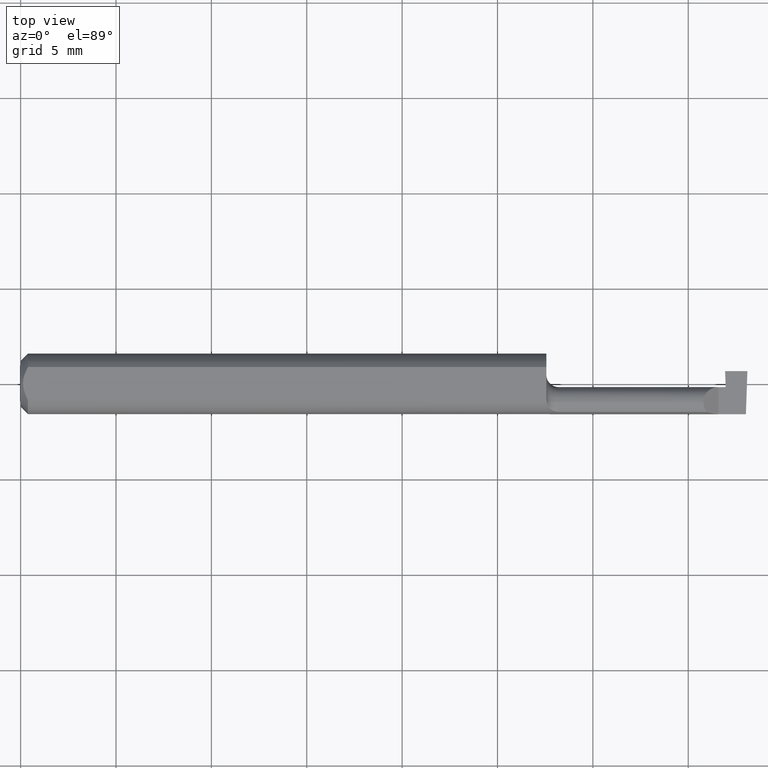
[diagram: clean part render]
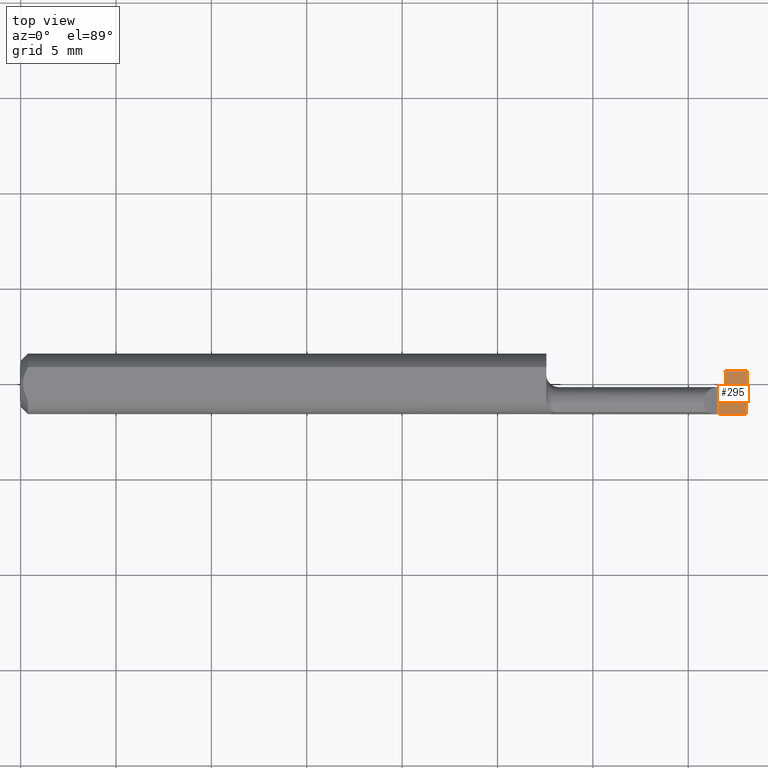
[diagram: same view with one face highlighted and labeled with its STEP entity id]
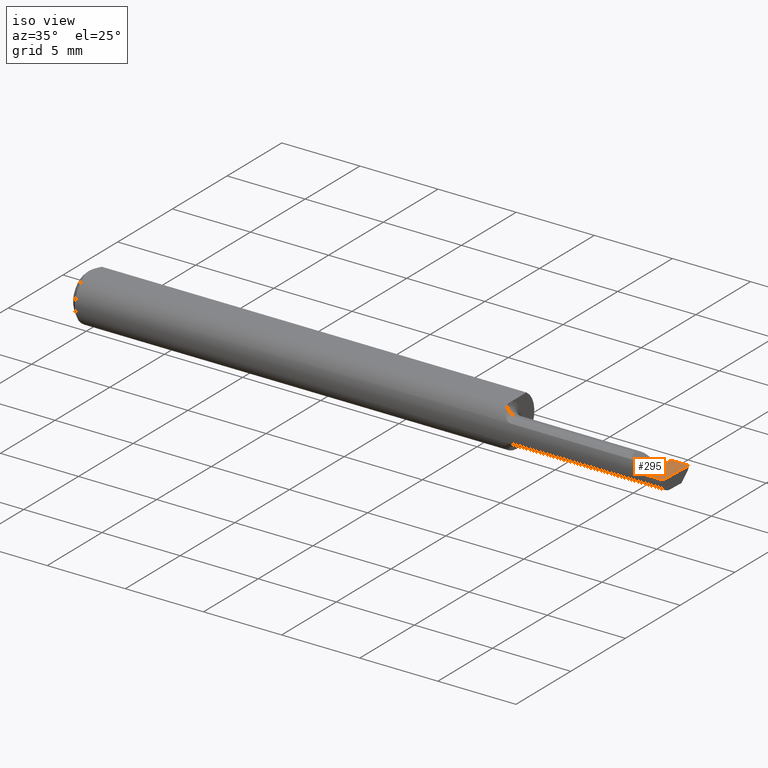
[diagram: same view with one face highlighted and labeled with its STEP entity id]
A machine part, top view. The second image highlights one B-rep face of the part: STEP entity #295.
A second angle (iso view) of the same face is appended — the face is thin or edge-on in the first view.
In plain terms, the highlighted planar face has unit normal (-0, 0, -1).
Its self-contained STEP definition (entity closure, byte-faithful):
#4 = DIRECTION ( 'NONE',  ( -1.000000000000000000, 0.000000000000000000, 1.244982809612622067E-16 ) ) ;
#20 = CARTESIAN_POINT ( 'NONE',  ( 1.496892051515234412, -0.06249999999999996531, -4.074989739627355278E-18 ) ) ;
#44 = CARTESIAN_POINT ( 'NONE',  ( 1.084999999999999964, -0.006499999999999993630, 5.166678659892382429E-17 ) ) ;
#89 = VERTEX_POINT ( 'NONE', #20 ) ;
#93 = LINE ( 'NONE', #590, #114 ) ;
#103 = VECTOR ( 'NONE', #434, 39.37007874015748143 ) ;
#104 = VECTOR ( 'NONE', #586, 39.37007874015748143 ) ;
#105 = CARTESIAN_POINT ( 'NONE',  ( 1.440000000000000169, -0.1000000000000000056, 7.469896857675718968E-18 ) ) ;
#108 = CARTESIAN_POINT ( 'NONE',  ( 1.499999999999999556, 0.02649999999999997843, -1.043117739768287950E-16 ) ) ;
#114 = VECTOR ( 'NONE', #542, 39.37007874015748143 ) ;
#145 = EDGE_CURVE ( 'NONE', #394, #504, #484, .T. ) ;
#154 = DIRECTION ( 'NONE',  ( 1.000000000000000000, -0.000000000000000000, -0.000000000000000000 ) ) ;
#167 = EDGE_CURVE ( 'NONE', #337, #300, #266, .T. ) ;
#171 = CARTESIAN_POINT ( 'NONE',  ( 1.454000000000000181, 0.02649999999999999231, -4.390358774943263236E-18 ) ) ;
#204 = CARTESIAN_POINT ( 'NONE',  ( 2.324973294346407873E-32, -0.06250000000000000000, 1.867474214418933224E-16 ) ) ;
#212 = EDGE_CURVE ( 'NONE', #89, #300, #93, .T. ) ;
#252 = ORIENTED_EDGE ( 'NONE', *, *, #667, .T. ) ;
#266 = LINE ( 'NONE', #371, #696 ) ;
#267 = DIRECTION ( 'NONE',  ( -0.000000000000000000, 1.000000000000000000, -0.000000000000000000 ) ) ;
#278 = CARTESIAN_POINT ( 'NONE',  ( 1.455151682536162783, -0.006500000000000021386, 1.132879419432717802E-17 ) ) ;
#295 = ADVANCED_FACE ( 'NONE', ( #327 ), #339, .F. ) ;
#300 = VERTEX_POINT ( 'NONE', #108 ) ;
#302 = CARTESIAN_POINT ( 'NONE',  ( 1.458465371114397113, -0.1014495365676831157, 5.170989896621579439E-18 ) ) ;
#327 = FACE_OUTER_BOUND ( 'NONE', #499, .T. ) ;
#332 = ORIENTED_EDGE ( 'NONE', *, *, #167, .F. ) ;
#334 = CARTESIAN_POINT ( 'NONE',  ( 1.500000000000000222, -0.1000000000000000056, 0.000000000000000000 ) ) ;
#337 = VERTEX_POINT ( 'NONE', #171 ) ;
#339 = PLANE ( 'NONE',  #619 ) ;
#345 = ORIENTED_EDGE ( 'NONE', *, *, #145, .F. ) ;
#371 = CARTESIAN_POINT ( 'NONE',  ( 1.400000000000000133, 0.02649999999999999231, -4.390358774943263236E-18 ) ) ;
#389 = ORIENTED_EDGE ( 'NONE', *, *, #711, .F. ) ;
#390 = EDGE_CURVE ( 'NONE', #670, #394, #451, .T. ) ;
#394 = VERTEX_POINT ( 'NONE', #491 ) ;
#408 = LINE ( 'NONE', #302, #549 ) ;
#434 = DIRECTION ( 'NONE',  ( 1.000000000000000000, 0.000000000000000000, 0.000000000000000000 ) ) ;
#451 = LINE ( 'NONE', #105, #469 ) ;
#469 = VECTOR ( 'NONE', #267, 39.37007874015748143 ) ;
#484 = LINE ( 'NONE', #44, #103 ) ;
#491 = CARTESIAN_POINT ( 'NONE',  ( 1.440000000000000169, -0.006500000000000019651, 7.469896857675718968E-18 ) ) ;
#499 = EDGE_LOOP ( 'NONE', ( #389, #602, #332, #252, #345, #606 ) ) ;
#504 = VERTEX_POINT ( 'NONE', #278 ) ;
#520 = CARTESIAN_POINT ( 'NONE',  ( 1.440000000000000169, -0.06250000000000000000, 7.469896857675718968E-18 ) ) ;
#526 = DIRECTION ( 'NONE',  ( 0.03487823687994284771, -0.9993915692020551855, -4.336991745945064567E-18 ) ) ;
#542 = DIRECTION ( 'NONE',  ( 0.03489949670249706953, 0.9993908270190959842, -4.341950059913416674E-18 ) ) ;
#549 = VECTOR ( 'NONE', #526, 39.37007874015749564 ) ;
#586 = DIRECTION ( 'NONE',  ( -1.000000000000000000, -0.000000000000000000, -0.000000000000000000 ) ) ;
#590 = CARTESIAN_POINT ( 'NONE',  ( 1.495587903035684230, -0.09984592617893391087, 5.492984874917308691E-19 ) ) ;
#592 = LINE ( 'NONE', #204, #104 ) ;
#602 = ORIENTED_EDGE ( 'NONE', *, *, #212, .T. ) ;
#606 = ORIENTED_EDGE ( 'NONE', *, *, #390, .F. ) ;
#619 = AXIS2_PLACEMENT_3D ( 'NONE', #334, #714, #4 ) ;
#667 = EDGE_CURVE ( 'NONE', #337, #504, #408, .T. ) ;
#670 = VERTEX_POINT ( 'NONE', #520 ) ;
#696 = VECTOR ( 'NONE', #154, 39.37007874015748143 ) ;
#711 = EDGE_CURVE ( 'NONE', #89, #670, #592, .T. ) ;
#714 = DIRECTION ( 'NONE',  ( -1.244982809612622067E-16, 0.000000000000000000, -1.000000000000000000 ) ) ;